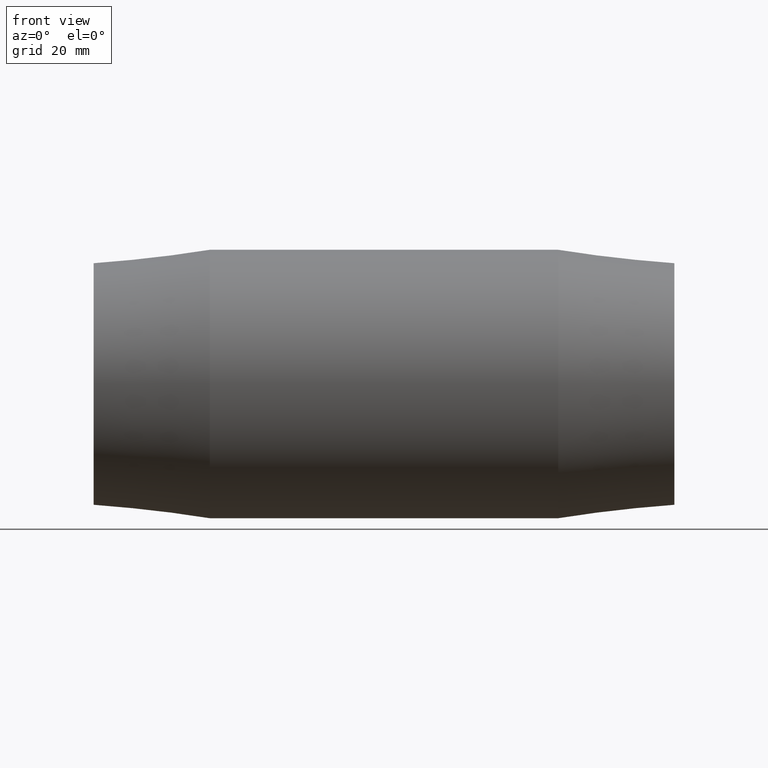
[diagram: clean part render]
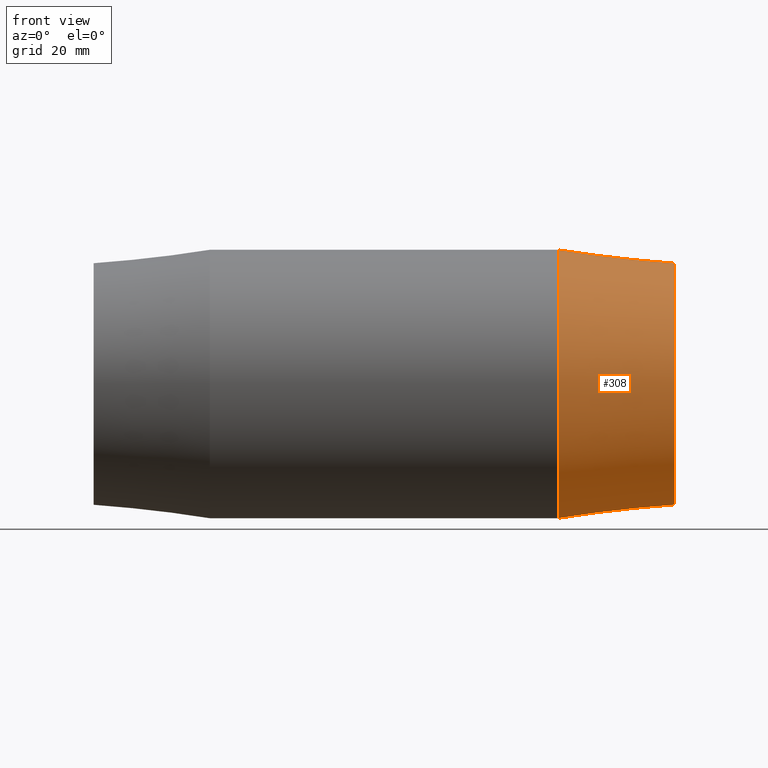
[diagram: same view with one face highlighted and labeled with its STEP entity id]
A machine part, front view. The second image highlights one B-rep face of the part: STEP entity #308.
In plain terms, the highlighted conical surface has half-angle 6.6 deg.
Its self-contained STEP definition (entity closure, byte-faithful):
#15=B_SPLINE_CURVE_WITH_KNOTS('',3,(#521,#522,#523,#524,#525,#526,#527,
#528,#529,#530,#531,#532,#533,#534,#535,#536,#537,#538,#539,#540,#541,#542,
#543,#544,#545,#546,#547,#548,#549,#550,#551,#552,#553,#554),
 .UNSPECIFIED.,.T.,.F.,(4,2,2,2,2,2,2,2,2,2,2,2,2,2,2,2,4),(0.,0.371178539158414,
0.742357078316828,1.10379809009615,1.46523910187547,1.82668011365479,2.18812112543411,
2.55929966459252,2.93047820375094,3.27008164205001,3.60968508034908,3.95258058588366,
4.29547609141823,4.63837159695281,4.98126710248738,5.32087054078645,5.66047397908553),
 .UNSPECIFIED.);
#19=CONICAL_SURFACE('',#350,26.6,6.59991698191387);
#34=FACE_BOUND('',#114,.T.);
#35=FACE_BOUND('',#115,.T.);
#74=FACE_OUTER_BOUND('',#113,.T.);
#113=EDGE_LOOP('',(#251));
#114=EDGE_LOOP('',(#252));
#115=EDGE_LOOP('',(#253));
#155=CIRCLE('',#348,28.);
#157=CIRCLE('',#351,25.2);
#181=VERTEX_POINT('',#520);
#183=VERTEX_POINT('',#593);
#185=VERTEX_POINT('',#598);
#209=EDGE_CURVE('',#181,#181,#15,.T.);
#211=EDGE_CURVE('',#183,#183,#155,.T.);
#213=EDGE_CURVE('',#185,#185,#157,.T.);
#251=ORIENTED_EDGE('',*,*,#213,.F.);
#252=ORIENTED_EDGE('',*,*,#209,.T.);
#253=ORIENTED_EDGE('',*,*,#211,.T.);
#308=ADVANCED_FACE('',(#74,#34,#35),#19,.T.);
#348=AXIS2_PLACEMENT_3D('',#594,#427,#428);
#350=AXIS2_PLACEMENT_3D('',#597,#431,#432);
#351=AXIS2_PLACEMENT_3D('',#599,#433,#434);
#427=DIRECTION('center_axis',(1.,0.,0.));
#428=DIRECTION('ref_axis',(0.,0.,-1.));
#431=DIRECTION('center_axis',(-1.,0.,0.));
#432=DIRECTION('ref_axis',(0.,1.,0.));
#433=DIRECTION('center_axis',(1.,0.,0.));
#434=DIRECTION('ref_axis',(0.,0.,-1.));
#520=CARTESIAN_POINT('',(48.8687231920942,24.8488613427775,9.33872933319037));
#521=CARTESIAN_POINT('Ctrl Pts',(48.8687231920942,24.8488613427775,9.33872933319036));
#522=CARTESIAN_POINT('Ctrl Pts',(47.6396608127947,24.9819765878729,9.38875686672275));
#523=CARTESIAN_POINT('Ctrl Pts',(46.3441327618656,25.2261095246299,9.17650416865128));
#524=CARTESIAN_POINT('Ctrl Pts',(43.9772977431647,25.8351384318358,8.23920271860789));
#525=CARTESIAN_POINT('Ctrl Pts',(42.9041725893513,26.1939474721493,7.51480095567409));
#526=CARTESIAN_POINT('Ctrl Pts',(41.2302186279011,26.8130955823555,5.84800281370046));
#527=CARTESIAN_POINT('Ctrl Pts',(40.5067845454803,27.1169688101338,4.79979146955379));
#528=CARTESIAN_POINT('Ctrl Pts',(39.5387188253421,27.5390624666877,2.47870325942681));
#529=CARTESIAN_POINT('Ctrl Pts',(39.2948878393217,27.6534840516487,1.20480337259773));
#530=CARTESIAN_POINT('Ctrl Pts',(39.2948878393217,27.6534840516487,-1.20480337259773));
#531=CARTESIAN_POINT('Ctrl Pts',(39.5387188253421,27.5390624666877,-2.47870325942681));
#532=CARTESIAN_POINT('Ctrl Pts',(40.5067845454804,27.1169688101338,-4.7997914695538));
#533=CARTESIAN_POINT('Ctrl Pts',(41.2302186279011,26.8130955823555,-5.84800281370046));
#534=CARTESIAN_POINT('Ctrl Pts',(42.9041725893513,26.1939474721493,-7.51480095567409));
#535=CARTESIAN_POINT('Ctrl Pts',(43.9772977431646,25.8351384318358,-8.23920271860788));
#536=CARTESIAN_POINT('Ctrl Pts',(46.3441327618656,25.2261095246299,-9.17650416865128));
#537=CARTESIAN_POINT('Ctrl Pts',(47.6396608127948,24.9819765878729,-9.38875686672275));
#538=CARTESIAN_POINT('Ctrl Pts',(49.9932327363166,24.7270698323445,-9.29295749940994));
#539=CARTESIAN_POINT('Ctrl Pts',(51.1876558797475,24.6855027336689,-9.02033526141007));
#540=CARTESIAN_POINT('Ctrl Pts',(53.3680510269304,24.7632200259814,-8.02051394988669));
#541=CARTESIAN_POINT('Ctrl Pts',(54.3543913180313,24.8769173756693,-7.29369161905948));
#542=CARTESIAN_POINT('Ctrl Pts',(55.9080239439911,25.1172166854198,-5.64927960050204));
#543=CARTESIAN_POINT('Ctrl Pts',(56.5807740549452,25.260136916309,-4.61546910202437));
#544=CARTESIAN_POINT('Ctrl Pts',(57.4725405737281,25.4659047098988,-2.36253806217644));
#545=CARTESIAN_POINT('Ctrl Pts',(57.6913330338332,25.5249697316226,-1.14298501844858));
#546=CARTESIAN_POINT('Ctrl Pts',(57.6913330338332,25.5249697316226,1.14298501844858));
#547=CARTESIAN_POINT('Ctrl Pts',(57.4725405737281,25.4659047098988,2.36253806217644));
#548=CARTESIAN_POINT('Ctrl Pts',(56.5807740549452,25.260136916309,4.61546910202437));
#549=CARTESIAN_POINT('Ctrl Pts',(55.9080239439911,25.1172166854198,5.64927960050204));
#550=CARTESIAN_POINT('Ctrl Pts',(54.3543913180313,24.8769173756693,7.29369161905947));
#551=CARTESIAN_POINT('Ctrl Pts',(53.3680510269304,24.7632200259814,8.02051394988669));
#552=CARTESIAN_POINT('Ctrl Pts',(51.1876558797475,24.6855027336689,9.02033526141007));
#553=CARTESIAN_POINT('Ctrl Pts',(49.9932327363166,24.7270698323445,9.29295749940994));
#554=CARTESIAN_POINT('Ctrl Pts',(48.8687231920943,24.8488613427775,9.33872933319036));
#593=CARTESIAN_POINT('',(36.3,28.,0.));
#594=CARTESIAN_POINT('Origin',(36.3,0.,0.));
#597=CARTESIAN_POINT('Origin',(48.4,0.,0.));
#598=CARTESIAN_POINT('',(60.5,25.2,0.));
#599=CARTESIAN_POINT('Origin',(60.5,0.,0.));